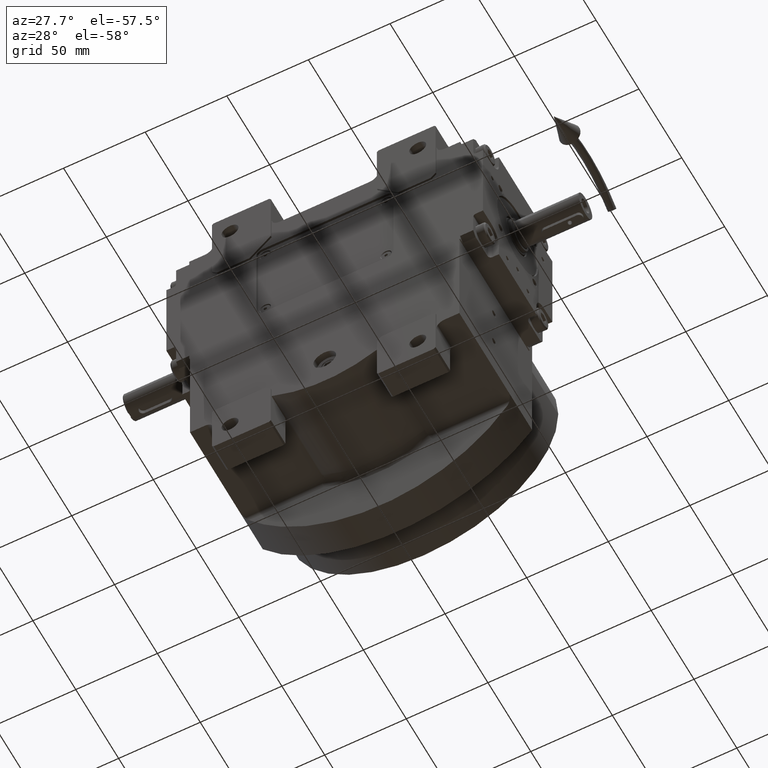
[diagram: clean part render]
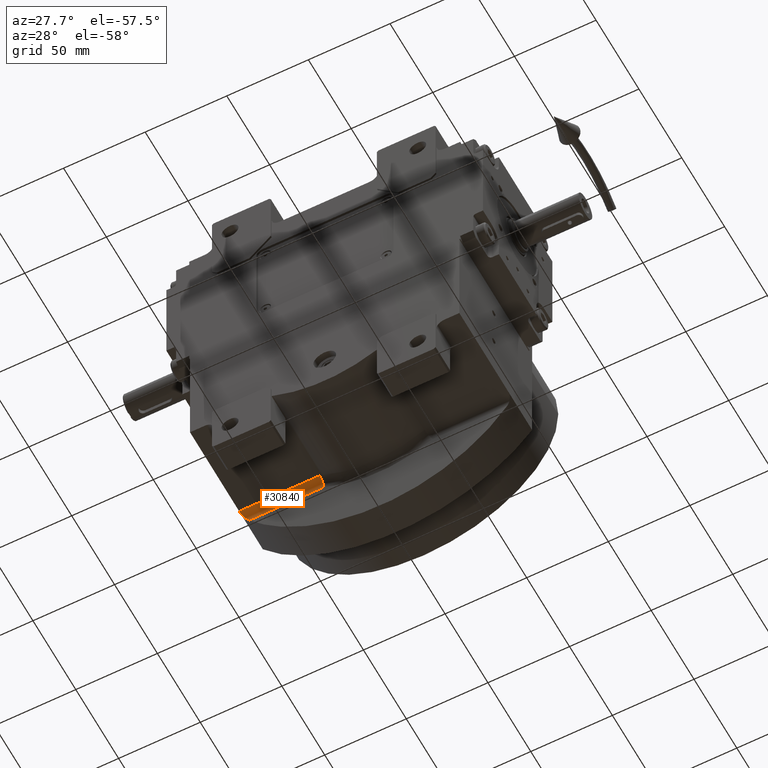
[diagram: same view with one face highlighted and labeled with its STEP entity id]
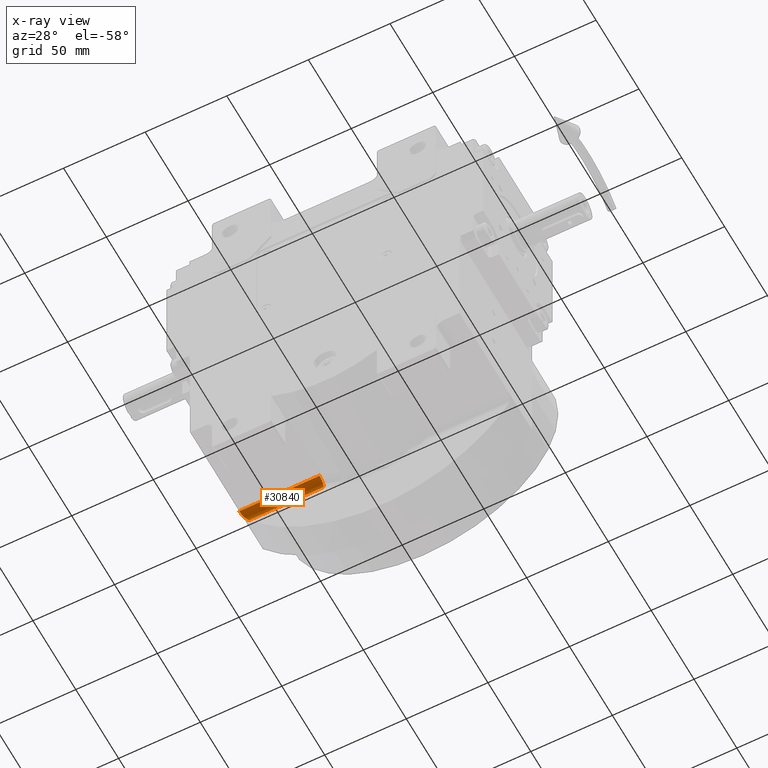
[diagram: x-ray of the same camera — body ghosted, the highlighted face saturated]
A machine part, auxiliary view. The second image highlights one B-rep face of the part: STEP entity #30840.
The next image is the same camera in x-ray: the body ghosted, the highlighted face saturated — about 0% of this face is hidden behind the body in this view.
In plain terms, the highlighted cylindrical surface (edge-blend (fillet) strip) has radius 5 mm, axis along (1, 0, 0).
Its self-contained STEP definition (entity closure, byte-faithful):
#319 = CARTESIAN_POINT ( 'NONE',  ( -79.04714209825419857, 21.89931762037159757, -63.06422128626171286 ) ) ;
#2434 = LINE ( 'NONE', #41572, #61706 ) ;
#4233 = CARTESIAN_POINT ( 'NONE',  ( -81.72912275488519640, 20.02336032153224465, -59.56685795275570428 ) ) ;
#5833 = DIRECTION ( 'NONE',  ( -1.000000000000000000, -1.548563323126480057E-15, -4.263256414560595435E-15 ) ) ;
#6778 = CARTESIAN_POINT ( 'NONE',  ( -82.17668361585674575, 18.99343862321323329, -58.95083879551732053 ) ) ;
#8878 = CARTESIAN_POINT ( 'NONE',  ( -33.32502203188484913, 21.89931762037159757, -63.06422128626171286 ) ) ;
#9220 = ORIENTED_EDGE ( 'NONE', *, *, #19277, .F. ) ;
#10222 = VECTOR ( 'NONE', #36883, 1000.000000000000000 ) ;
#10552 = EDGE_CURVE ( 'NONE', #13471, #20846, #2434, .T. ) ;
#13471 = VERTEX_POINT ( 'NONE', #37057 ) ;
#14240 = CARTESIAN_POINT ( 'NONE',  ( -81.92755116913107827, 19.62953403434189070, -59.29481147433178734 ) ) ;
#15199 = CARTESIAN_POINT ( 'NONE',  ( -82.15202258272368852, 19.06696433432636084, -58.98501332906405281 ) ) ;
#15951 = ORIENTED_EDGE ( 'NONE', *, *, #10552, .T. ) ;
#17677 = VERTEX_POINT ( 'NONE', #52815 ) ;
#17772 = CIRCLE ( 'NONE', #38424, 4.999999999999997335 ) ;
#18747 = CARTESIAN_POINT ( 'NONE',  ( -81.26507269813426149, 20.67153175727413839, -60.19468085035670413 ) ) ;
#18779 = FACE_OUTER_BOUND ( 'NONE', #59634, .T. ) ;
#19086 = DIRECTION ( 'NONE',  ( 0.000000000000000000, -6.938893903907232322E-16, 1.000000000000000000 ) ) ;
#19218 = EDGE_CURVE ( 'NONE', #17677, #20846, #55897, .T. ) ;
#19277 = EDGE_CURVE ( 'NONE', #13471, #35056, #17772, .T. ) ;
#20033 = CARTESIAN_POINT ( 'NONE',  ( -80.12842679020312175, 21.58080859296140730, -61.69183025208548088 ) ) ;
#20846 = VERTEX_POINT ( 'NONE', #29367 ) ;
#23650 = CARTESIAN_POINT ( 'NONE',  ( -80.71124185557013675, 21.21846151542565195, -60.93204789127204180 ) ) ;
#23954 = CARTESIAN_POINT ( 'NONE',  ( -80.27860717920268030, 21.49925890274865381, -61.49721705929056270 ) ) ;
#26724 = DIRECTION ( 'NONE',  ( -1.000000000000000000, 0.000000000000000000, 0.000000000000000000 ) ) ;
#26894 = LINE ( 'NONE', #46599, #10222 ) ;
#28814 = CARTESIAN_POINT ( 'NONE',  ( -81.39498484016964142, 20.50852863369454937, -60.01977494073535979 ) ) ;
#29367 = CARTESIAN_POINT ( 'NONE',  ( -82.50000025268040815, 16.91834885168089997, -58.49999999999780442 ) ) ;
#30840 = ADVANCED_FACE ( 'NONE', ( #18779 ), #33071, .F. ) ;
#33071 = CYLINDRICAL_SURFACE ( 'NONE', #48351, 4.999999999999997335 ) ;
#33974 = CARTESIAN_POINT ( 'NONE',  ( -82.01948044624195688, 19.42585975081978944, -59.16830358708783422 ) ) ;
#34007 = DIRECTION ( 'NONE',  ( 1.000000000000000000, 0.000000000000000000, 0.000000000000000000 ) ) ;
#34588 = CARTESIAN_POINT ( 'NONE',  ( -80.25465571364438233, 21.51277101549150217, -61.52830606318158146 ) ) ;
#35056 = VERTEX_POINT ( 'NONE', #8878 ) ;
#35566 = CARTESIAN_POINT ( 'NONE',  ( -33.32502203188480649, 16.91834412991284964, -63.50000000000000000 ) ) ;
#36883 = DIRECTION ( 'NONE',  ( -1.000000000000000000, 0.000000000000000000, 0.000000000000000000 ) ) ;
#37057 = CARTESIAN_POINT ( 'NONE',  ( -33.32502203188484913, 16.91834412991290293, -58.50000000000000000 ) ) ;
#38424 = AXIS2_PLACEMENT_3D ( 'NONE', #35566, #5833, #45913 ) ;
#38497 = CARTESIAN_POINT ( 'NONE',  ( -81.33609102444246730, 20.58412511646597665, -60.09914755126264652 ) ) ;
#40121 = CARTESIAN_POINT ( 'NONE',  ( -82.39684885677273485, 18.29445221631914009, -58.64535851625800689 ) ) ;
#40443 = CARTESIAN_POINT ( 'NONE',  ( -82.49601985882750910, 17.62754433642036389, -58.50558214806272872 ) ) ;
#41572 = CARTESIAN_POINT ( 'NONE',  ( -33.32502203188484913, 16.91834412991290293, -58.50000000000000000 ) ) ;
#43362 = CARTESIAN_POINT ( 'NONE',  ( -80.98624644766000813, 20.97105402362710080, -60.56742782993570273 ) ) ;
#45913 = DIRECTION ( 'NONE',  ( -4.163336342344339393E-15, 1.387778780781446464E-15, 1.000000000000000000 ) ) ;
#46599 = CARTESIAN_POINT ( 'NONE',  ( -33.32502203188484913, 21.89931762037159757, -63.06422128626171286 ) ) ;
#47284 = ORIENTED_EDGE ( 'NONE', *, *, #19218, .F. ) ;
#48198 = CARTESIAN_POINT ( 'NONE',  ( -80.51481584605495812, 21.36195474809392891, -61.19021373771372652 ) ) ;
#48351 = AXIS2_PLACEMENT_3D ( 'NONE', #63387, #34007, #19086 ) ;
#48514 = CARTESIAN_POINT ( 'NONE',  ( -81.57741936295431628, 20.26788147318732669, -59.77360383890905382 ) ) ;
#49796 = CARTESIAN_POINT ( 'NONE',  ( -82.50000025268040815, 16.91834885168089997, -58.49999999999780442 ) ) ;
#52815 = CARTESIAN_POINT ( 'NONE',  ( -79.04714209825419857, 21.89931762037159757, -63.06422128626171286 ) ) ;
#53036 = CARTESIAN_POINT ( 'NONE',  ( -79.95003047960310028, 21.66726030743307874, -61.92194395876539659 ) ) ;
#53686 = CARTESIAN_POINT ( 'NONE',  ( -82.11413870244251711, 19.17640775850521706, -59.03747797673931075 ) ) ;
#53997 = CARTESIAN_POINT ( 'NONE',  ( -79.58728390821065091, 21.80910175760159930, -62.38629793861768746 ) ) ;
#54665 = CARTESIAN_POINT ( 'NONE',  ( -82.18817833712013510, 18.95810624168983338, -58.93489948096387110 ) ) ;
#55897 = B_SPLINE_CURVE_WITH_KNOTS ( 'NONE', 3,
 ( #319, #57907, #53997, #53036, #20033, #59160, #34588, #23954, #48198, #23650, #43362, #63068, #18747, #38497, #58526, #58204, #28814, #48514, #4233, #14240, #33974, #53686, #15199, #6778, #54665, #40121, #40443, #49796 ),
 .UNSPECIFIED., .F., .F.,
 ( 4, 1, 1, 1, 2, 2, 2, 1, 1, 1, 2, 2, 2, 1, 1, 2, 2, 4 ),
 ( 0.000000000000000000, 0.1249999999999864830, 0.1874999999999781009, 0.2187499999999750200, 0.2343749999999729661, 0.2499999999999709122, 0.3749999999999693578, 0.4374999999999674705, 0.4687499999999676925, 0.4843749999999690248, 0.4921874999999693578, 0.4999999999999696909, 0.6249999999999751310, 0.6874999999999793499, 0.7187499999999809042, 0.7343749999999814593, 0.7499999999999819034, 1.000000000000000000 ),
 .UNSPECIFIED. ) ;
#57907 = CARTESIAN_POINT ( 'NONE',  ( -79.26602375749489227, 21.87743103698923264, -62.79126682060910980 ) ) ;
#58204 = CARTESIAN_POINT ( 'NONE',  ( -81.38597234681162718, 20.52026771325004262, -60.03192930007764261 ) ) ;
#58526 = CARTESIAN_POINT ( 'NONE',  ( -81.36607944202090437, 20.54591119842016056, -60.05874453835777871 ) ) ;
#59160 = CARTESIAN_POINT ( 'NONE',  ( -80.20424840609429395, 21.54042978903339645, -61.59365602934637707 ) ) ;
#59634 = EDGE_LOOP ( 'NONE', ( #47284, #63858, #9220, #15951 ) ) ;
#61706 = VECTOR ( 'NONE', #26724, 1000.000000000000000 ) ;
#62205 = EDGE_CURVE ( 'NONE', #35056, #17677, #26894, .T. ) ;
#63068 = CARTESIAN_POINT ( 'NONE',  ( -81.11883898710647145, 20.83930836702879219, -60.39077376549800391 ) ) ;
#63387 = CARTESIAN_POINT ( 'NONE',  ( -32.83418255755020709, 16.91834412991290293, -63.50000000000000000 ) ) ;
#63858 = ORIENTED_EDGE ( 'NONE', *, *, #62205, .F. ) ;